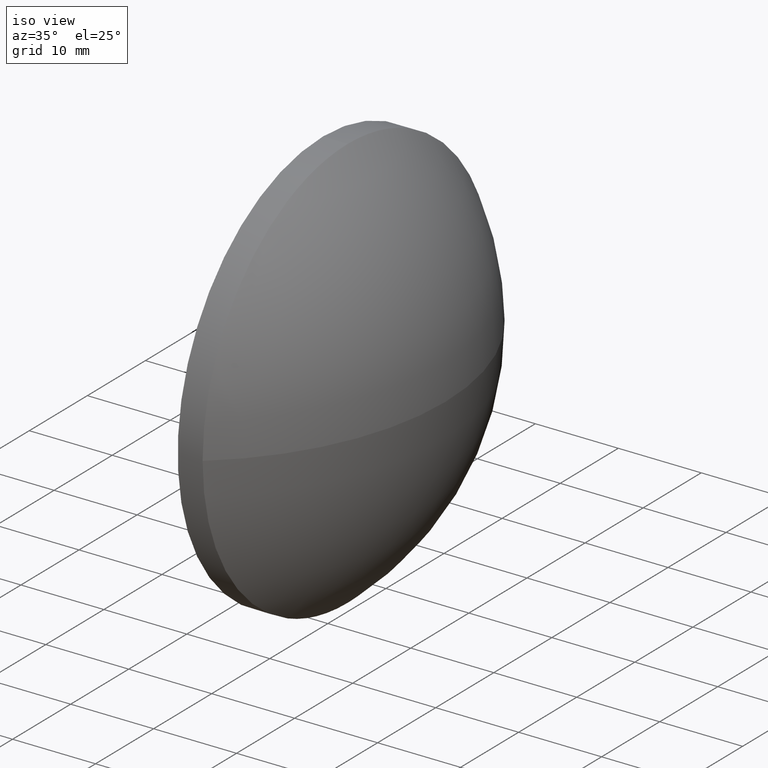
[diagram: clean part render]
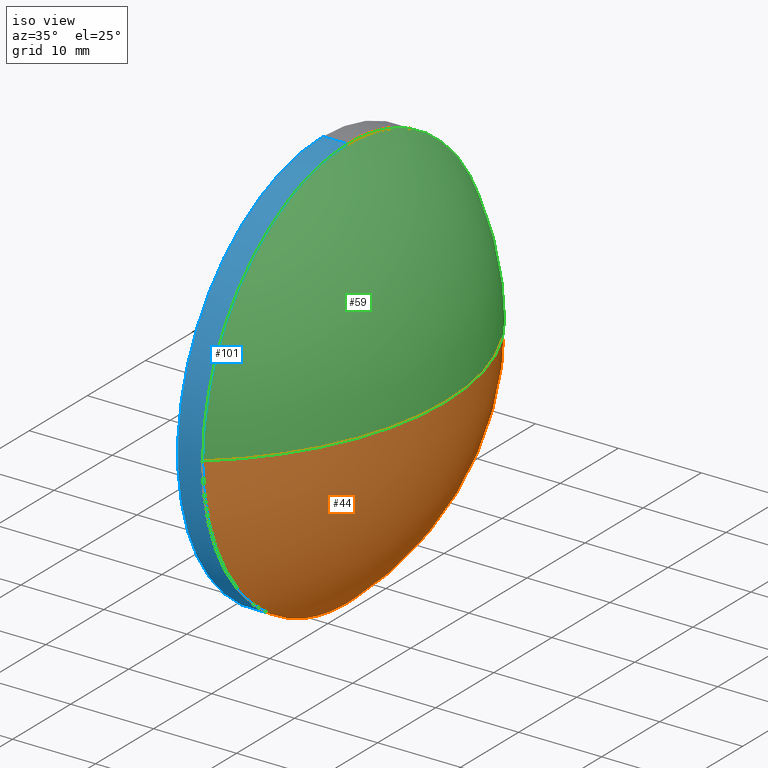
[diagram: same view with three faces highlighted in distinct colors, each labeled with its STEP entity id]
A machine part, iso view with three faces highlighted in distinct colors.
Their STEP definitions:

[orange] entity #44 — the highlighted spherical surface has radius 32.5061 mm.
#1 = AXIS2_PLACEMENT_3D ( 'NONE', #98, #40, #25 ) ;
#6 = DIRECTION ( 'NONE',  ( 1.000000000000000000, 0.0000000000000000000, 0.0000000000000000000 ) ) ;
#12 = VERTEX_POINT ( 'NONE', #74 ) ;
#15 = FACE_OUTER_BOUND ( 'NONE', #166, .T. ) ;
#16 = EDGE_CURVE ( 'NONE', #169, #153, #126, .T. ) ;
#19 = CARTESIAN_POINT ( 'NONE',  ( 379.3848669996680800, 63.20629092500522000, 0.0000000000000000000 ) ) ;
#25 = DIRECTION ( 'NONE',  ( 0.0000000000000000000, 0.0000000000000000000, 1.000000000000000000 ) ) ;
#26 = ORIENTED_EDGE ( 'NONE', *, *, #155, .F. ) ;
#28 = ORIENTED_EDGE ( 'NONE', *, *, #37, .F. ) ;
#30 = DIRECTION ( 'NONE',  ( -1.000000000000000000, -0.0000000000000000000, -0.0000000000000000000 ) ) ;
#31 = DIRECTION ( 'NONE',  ( 0.0000000000000000000, 1.000000000000000000, 0.0000000000000000000 ) ) ;
#37 = EDGE_CURVE ( 'NONE', #169, #12, #47, .T. ) ;
#40 = DIRECTION ( 'NONE',  ( -1.000000000000000000, -0.0000000000000000000, -0.0000000000000000000 ) ) ;
#44 = ADVANCED_FACE ( 'NONE', ( #15 ), #159, .T. ) ;
#46 = EDGE_CURVE ( 'NONE', #135, #153, #58, .T. ) ;
#47 = CIRCLE ( 'NONE', #102, 32.50609121909636900 ) ;
#58 = CIRCLE ( 'NONE', #114, 24.99999999999999300 ) ;
#60 = CIRCLE ( 'NONE', #1, 24.99999999999999300 ) ;
#63 = CARTESIAN_POINT ( 'NONE',  ( 379.3848669996680800, 63.20629092500522000, 0.0000000000000000000 ) ) ;
#65 = DIRECTION ( 'NONE',  ( 0.0000000000000000000, 1.224646799147353200E-016, -1.000000000000000000 ) ) ;
#74 = CARTESIAN_POINT ( 'NONE',  ( 400.1609582187644500, 88.20629092500520600, 0.0000000000000000000 ) ) ;
#93 = CARTESIAN_POINT ( 'NONE',  ( 379.3848669996680800, 63.20629092500522000, 0.0000000000000000000 ) ) ;
#97 = CARTESIAN_POINT ( 'NONE',  ( 400.1609582187644500, 38.20629092500523400, -3.061616997868381500E-015 ) ) ;
#98 = CARTESIAN_POINT ( 'NONE',  ( 400.1609582187644500, 63.20629092500522000, 0.0000000000000000000 ) ) ;
#102 = AXIS2_PLACEMENT_3D ( 'NONE', #19, #121, #6 ) ;
#103 = DIRECTION ( 'NONE',  ( 0.0000000000000000000, 0.0000000000000000000, 1.000000000000000000 ) ) ;
#107 = CARTESIAN_POINT ( 'NONE',  ( 411.8909582187644100, 63.20629092500522000, 0.0000000000000000000 ) ) ;
#110 = AXIS2_PLACEMENT_3D ( 'NONE', #93, #119, #31 ) ;
#114 = AXIS2_PLACEMENT_3D ( 'NONE', #175, #30, #103 ) ;
#119 = DIRECTION ( 'NONE',  ( -0.0000000000000000000, 0.0000000000000000000, -1.000000000000000000 ) ) ;
#121 = DIRECTION ( 'NONE',  ( -0.0000000000000000000, 0.0000000000000000000, 1.000000000000000000 ) ) ;
#126 = CIRCLE ( 'NONE', #133, 32.50609121909636900 ) ;
#127 = CARTESIAN_POINT ( 'NONE',  ( 400.1609582187644500, 63.20629092500522000, -24.99999999999999300 ) ) ;
#133 = AXIS2_PLACEMENT_3D ( 'NONE', #63, #65, #137 ) ;
#135 = VERTEX_POINT ( 'NONE', #127 ) ;
#137 = DIRECTION ( 'NONE',  ( 0.0000000000000000000, 1.000000000000000000, 1.224646799147353000E-016 ) ) ;
#146 = ORIENTED_EDGE ( 'NONE', *, *, #16, .T. ) ;
#147 = ORIENTED_EDGE ( 'NONE', *, *, #46, .F. ) ;
#153 = VERTEX_POINT ( 'NONE', #97 ) ;
#155 = EDGE_CURVE ( 'NONE', #12, #135, #60, .T. ) ;
#159 = SPHERICAL_SURFACE ( 'NONE', #110, 32.50609121909636900 ) ;
#166 = EDGE_LOOP ( 'NONE', ( #28, #146, #147, #26 ) ) ;
#169 = VERTEX_POINT ( 'NONE', #107 ) ;
#175 = CARTESIAN_POINT ( 'NONE',  ( 400.1609582187644500, 63.20629092500522000, 0.0000000000000000000 ) ) ;

[blue] entity #101 — the highlighted cylindrical surface (partial cylindrical patch) has radius 25 mm, axis along (-1, -0, -0).
#3 = CARTESIAN_POINT ( 'NONE',  ( 393.1891829296483800, 63.20629092500522000, 0.0000000000000000000 ) ) ;
#8 = VECTOR ( 'NONE', #85, 1000.000000000000000 ) ;
#11 = CIRCLE ( 'NONE', #118, 24.99999999999999300 ) ;
#13 = AXIS2_PLACEMENT_3D ( 'NONE', #3, #150, #106 ) ;
#22 = CARTESIAN_POINT ( 'NONE',  ( 397.1609582187644500, 63.20629092500522000, 24.99999999999999300 ) ) ;
#24 = CYLINDRICAL_SURFACE ( 'NONE', #13, 24.99999999999999300 ) ;
#29 = VERTEX_POINT ( 'NONE', #172 ) ;
#30 = DIRECTION ( 'NONE',  ( -1.000000000000000000, -0.0000000000000000000, -0.0000000000000000000 ) ) ;
#33 = EDGE_CURVE ( 'NONE', #135, #55, #120, .T. ) ;
#34 = DIRECTION ( 'NONE',  ( -1.000000000000000000, -0.0000000000000000000, -0.0000000000000000000 ) ) ;
#36 = CARTESIAN_POINT ( 'NONE',  ( 397.1609582187644500, 63.20629092500522000, 0.0000000000000000000 ) ) ;
#42 = CIRCLE ( 'NONE', #129, 24.99999999999999300 ) ;
#45 = FACE_OUTER_BOUND ( 'NONE', #186, .T. ) ;
#46 = EDGE_CURVE ( 'NONE', #135, #153, #58, .T. ) ;
#55 = VERTEX_POINT ( 'NONE', #104 ) ;
#58 = CIRCLE ( 'NONE', #114, 24.99999999999999300 ) ;
#62 = LINE ( 'NONE', #165, #8 ) ;
#66 = ORIENTED_EDGE ( 'NONE', *, *, #33, .F. ) ;
#69 = ORIENTED_EDGE ( 'NONE', *, *, #164, .F. ) ;
#73 = EDGE_CURVE ( 'NONE', #153, #29, #11, .T. ) ;
#75 = VERTEX_POINT ( 'NONE', #22 ) ;
#76 = CARTESIAN_POINT ( 'NONE',  ( 400.1609582187644500, 63.20629092500522000, 0.0000000000000000000 ) ) ;
#80 = DIRECTION ( 'NONE',  ( 0.0000000000000000000, 0.0000000000000000000, 1.000000000000000000 ) ) ;
#83 = DIRECTION ( 'NONE',  ( 0.0000000000000000000, 0.0000000000000000000, 1.000000000000000000 ) ) ;
#85 = DIRECTION ( 'NONE',  ( -1.000000000000000000, -0.0000000000000000000, -0.0000000000000000000 ) ) ;
#86 = VECTOR ( 'NONE', #149, 1000.000000000000000 ) ;
#97 = CARTESIAN_POINT ( 'NONE',  ( 400.1609582187644500, 38.20629092500523400, -3.061616997868381500E-015 ) ) ;
#101 = ADVANCED_FACE ( 'NONE', ( #45 ), #24, .T. ) ;
#103 = DIRECTION ( 'NONE',  ( 0.0000000000000000000, 0.0000000000000000000, 1.000000000000000000 ) ) ;
#104 = CARTESIAN_POINT ( 'NONE',  ( 397.1609582187644500, 63.20629092500522000, -24.99999999999999300 ) ) ;
#106 = DIRECTION ( 'NONE',  ( 0.0000000000000000000, 0.0000000000000000000, 1.000000000000000000 ) ) ;
#109 = ORIENTED_EDGE ( 'NONE', *, *, #46, .T. ) ;
#114 = AXIS2_PLACEMENT_3D ( 'NONE', #175, #30, #103 ) ;
#118 = AXIS2_PLACEMENT_3D ( 'NONE', #76, #34, #80 ) ;
#120 = LINE ( 'NONE', #177, #86 ) ;
#127 = CARTESIAN_POINT ( 'NONE',  ( 400.1609582187644500, 63.20629092500522000, -24.99999999999999300 ) ) ;
#129 = AXIS2_PLACEMENT_3D ( 'NONE', #36, #138, #83 ) ;
#131 = ORIENTED_EDGE ( 'NONE', *, *, #73, .T. ) ;
#135 = VERTEX_POINT ( 'NONE', #127 ) ;
#138 = DIRECTION ( 'NONE',  ( -1.000000000000000000, -0.0000000000000000000, -0.0000000000000000000 ) ) ;
#149 = DIRECTION ( 'NONE',  ( -1.000000000000000000, -0.0000000000000000000, -0.0000000000000000000 ) ) ;
#150 = DIRECTION ( 'NONE',  ( -1.000000000000000000, -0.0000000000000000000, -0.0000000000000000000 ) ) ;
#153 = VERTEX_POINT ( 'NONE', #97 ) ;
#161 = EDGE_CURVE ( 'NONE', #29, #75, #62, .T. ) ;
#164 = EDGE_CURVE ( 'NONE', #55, #75, #42, .T. ) ;
#165 = CARTESIAN_POINT ( 'NONE',  ( 393.1891829296483800, 63.20629092500522000, 24.99999999999999300 ) ) ;
#171 = ORIENTED_EDGE ( 'NONE', *, *, #161, .T. ) ;
#172 = CARTESIAN_POINT ( 'NONE',  ( 400.1609582187644500, 63.20629092500522000, 24.99999999999999300 ) ) ;
#175 = CARTESIAN_POINT ( 'NONE',  ( 400.1609582187644500, 63.20629092500522000, 0.0000000000000000000 ) ) ;
#177 = CARTESIAN_POINT ( 'NONE',  ( 393.1891829296483800, 63.20629092500522000, -24.99999999999999300 ) ) ;
#186 = EDGE_LOOP ( 'NONE', ( #66, #109, #131, #171, #69 ) ) ;

[green] entity #59 — the highlighted spherical surface has radius 32.5061 mm.
#6 = DIRECTION ( 'NONE',  ( 1.000000000000000000, 0.0000000000000000000, 0.0000000000000000000 ) ) ;
#11 = CIRCLE ( 'NONE', #118, 24.99999999999999300 ) ;
#12 = VERTEX_POINT ( 'NONE', #74 ) ;
#16 = EDGE_CURVE ( 'NONE', #169, #153, #126, .T. ) ;
#18 = ORIENTED_EDGE ( 'NONE', *, *, #37, .T. ) ;
#19 = CARTESIAN_POINT ( 'NONE',  ( 379.3848669996680800, 63.20629092500522000, 0.0000000000000000000 ) ) ;
#29 = VERTEX_POINT ( 'NONE', #172 ) ;
#32 = DIRECTION ( 'NONE',  ( -1.000000000000000000, -0.0000000000000000000, -0.0000000000000000000 ) ) ;
#34 = DIRECTION ( 'NONE',  ( -1.000000000000000000, -0.0000000000000000000, -0.0000000000000000000 ) ) ;
#37 = EDGE_CURVE ( 'NONE', #169, #12, #47, .T. ) ;
#47 = CIRCLE ( 'NONE', #102, 32.50609121909636900 ) ;
#59 = ADVANCED_FACE ( 'NONE', ( #117 ), #89, .T. ) ;
#63 = CARTESIAN_POINT ( 'NONE',  ( 379.3848669996680800, 63.20629092500522000, 0.0000000000000000000 ) ) ;
#64 = ORIENTED_EDGE ( 'NONE', *, *, #95, .F. ) ;
#65 = DIRECTION ( 'NONE',  ( 0.0000000000000000000, 1.224646799147353200E-016, -1.000000000000000000 ) ) ;
#72 = ORIENTED_EDGE ( 'NONE', *, *, #16, .F. ) ;
#73 = EDGE_CURVE ( 'NONE', #153, #29, #11, .T. ) ;
#74 = CARTESIAN_POINT ( 'NONE',  ( 400.1609582187644500, 88.20629092500520600, 0.0000000000000000000 ) ) ;
#76 = CARTESIAN_POINT ( 'NONE',  ( 400.1609582187644500, 63.20629092500522000, 0.0000000000000000000 ) ) ;
#78 = CARTESIAN_POINT ( 'NONE',  ( 379.3848669996680800, 63.20629092500522000, 0.0000000000000000000 ) ) ;
#79 = CARTESIAN_POINT ( 'NONE',  ( 400.1609582187644500, 63.20629092500522000, 0.0000000000000000000 ) ) ;
#80 = DIRECTION ( 'NONE',  ( 0.0000000000000000000, 0.0000000000000000000, 1.000000000000000000 ) ) ;
#89 = SPHERICAL_SURFACE ( 'NONE', #124, 32.50609121909636900 ) ;
#95 = EDGE_CURVE ( 'NONE', #29, #12, #157, .T. ) ;
#97 = CARTESIAN_POINT ( 'NONE',  ( 400.1609582187644500, 38.20629092500523400, -3.061616997868381500E-015 ) ) ;
#102 = AXIS2_PLACEMENT_3D ( 'NONE', #19, #121, #6 ) ;
#105 = DIRECTION ( 'NONE',  ( 0.0000000000000000000, 0.0000000000000000000, 1.000000000000000000 ) ) ;
#107 = CARTESIAN_POINT ( 'NONE',  ( 411.8909582187644100, 63.20629092500522000, 0.0000000000000000000 ) ) ;
#117 = FACE_OUTER_BOUND ( 'NONE', #176, .T. ) ;
#118 = AXIS2_PLACEMENT_3D ( 'NONE', #76, #34, #80 ) ;
#121 = DIRECTION ( 'NONE',  ( -0.0000000000000000000, 0.0000000000000000000, 1.000000000000000000 ) ) ;
#123 = DIRECTION ( 'NONE',  ( 0.0000000000000000000, 1.000000000000000000, 0.0000000000000000000 ) ) ;
#124 = AXIS2_PLACEMENT_3D ( 'NONE', #78, #162, #123 ) ;
#126 = CIRCLE ( 'NONE', #133, 32.50609121909636900 ) ;
#133 = AXIS2_PLACEMENT_3D ( 'NONE', #63, #65, #137 ) ;
#137 = DIRECTION ( 'NONE',  ( 0.0000000000000000000, 1.000000000000000000, 1.224646799147353000E-016 ) ) ;
#143 = AXIS2_PLACEMENT_3D ( 'NONE', #79, #32, #105 ) ;
#153 = VERTEX_POINT ( 'NONE', #97 ) ;
#157 = CIRCLE ( 'NONE', #143, 24.99999999999999300 ) ;
#162 = DIRECTION ( 'NONE',  ( -0.0000000000000000000, 0.0000000000000000000, -1.000000000000000000 ) ) ;
#169 = VERTEX_POINT ( 'NONE', #107 ) ;
#172 = CARTESIAN_POINT ( 'NONE',  ( 400.1609582187644500, 63.20629092500522000, 24.99999999999999300 ) ) ;
#176 = EDGE_LOOP ( 'NONE', ( #72, #18, #64, #183 ) ) ;
#183 = ORIENTED_EDGE ( 'NONE', *, *, #73, .F. ) ;